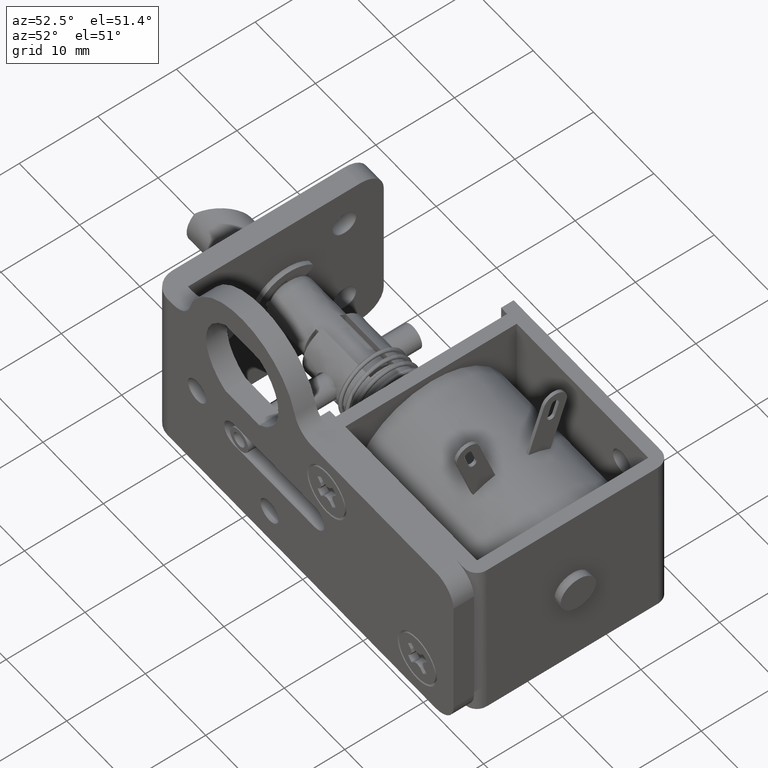
[diagram: clean part render]
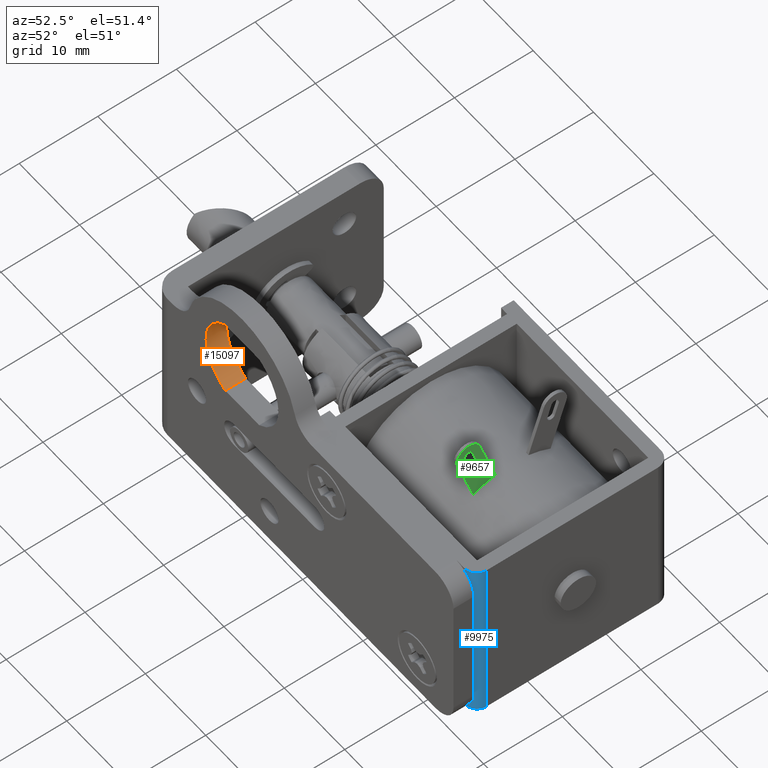
[diagram: same view with three faces highlighted in distinct colors, each labeled with its STEP entity id]
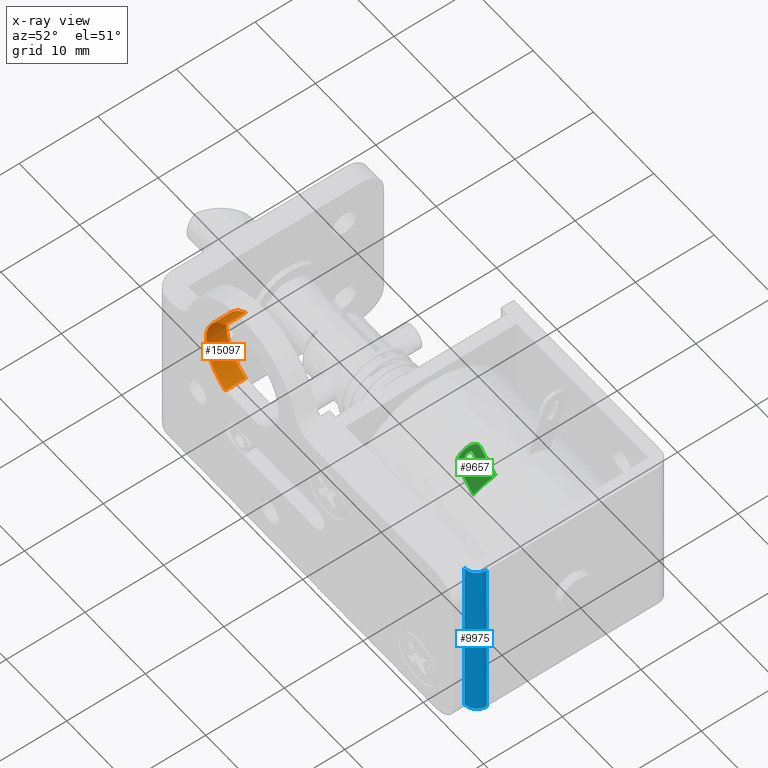
[diagram: x-ray of the same camera — body ghosted, the three highlighted faces saturated]
A machine part, auxiliary view with three faces highlighted in distinct colors.
The next image is the same camera in x-ray (body ghosted, the three faces saturated) — at least one of them is partly hidden behind the body in this view.
Their STEP definitions:

[orange] entity #15097 — the highlighted face is a freeform B-spline surface patch.
#14933=CARTESIAN_POINT('',(-2.812472222085045,0.0,5.300000000000000));
#14934=VERTEX_POINT('',#14933);
#14942=CARTESIAN_POINT('',(-2.812472222085045,2.599999999999880,5.300000000000000));
#14943=VERTEX_POINT('',#14942);
#14944=CARTESIAN_POINT('',(-2.812472222085045,2.599999999999880,5.300000000000000));
#14945=CARTESIAN_POINT('',(-2.812472222085045,0.0,5.300000000000000));
#14946=QUASI_UNIFORM_CURVE('',1,(#14944,#14945),.UNSPECIFIED.,.F.,.U.);
#14947=EDGE_CURVE('',#14943,#14934,#14946,.T.);
#15026=CARTESIAN_POINT('',(-2.812472222085045,0.0,-5.300000000000000));
#15027=VERTEX_POINT('',#15026);
#15034=CARTESIAN_POINT('',(-2.812472222085045,2.599999999999825,-5.300000000000000));
#15035=VERTEX_POINT('',#15034);
#15041=CARTESIAN_POINT('',(-2.812472222085045,2.599999999999825,-5.300000000000000));
#15042=CARTESIAN_POINT('',(-2.812472222085045,0.0,-5.300000000000000));
#15043=QUASI_UNIFORM_CURVE('',1,(#15041,#15042),.UNSPECIFIED.,.F.,.U.);
#15044=EDGE_CURVE('',#15035,#15027,#15043,.T.);
#15049=CARTESIAN_POINT('',(-2.587518796469885,2.664999999999877,-5.413385860800522));
#15050=CARTESIAN_POINT('',(-2.587518796469885,-0.066624999999997,-5.413385860800522));
#15051=CARTESIAN_POINT('',(-14.466109935517093,2.664999999999878,0.264405938677832));
#15052=CARTESIAN_POINT('',(-14.466109935517093,-0.066624999999997,0.264405938677832));
#15053=CARTESIAN_POINT('',(-2.387969101481931,2.664999999999877,5.504325896090052));
#15054=CARTESIAN_POINT('',(-2.387969101481931,-0.066624999999997,5.504325896090052));
#15062=(BOUNDED_SURFACE()B_SPLINE_SURFACE(1,2,((#15049,#15051,#15053),(#15050,#15052,#15054)),.UNSPECIFIED.,.F.,.F.,.U.)B_SPLINE_SURFACE_WITH_KNOTS((2,2),(3,3),(0.0,2.731624999999874),(0.0,15.437318736344441),.UNSPECIFIED.)GEOMETRIC_REPRESENTATION_ITEM()RATIONAL_B_SPLINE_SURFACE(((1.0,0.414693242656239,1.0),(1.0,0.414693242656239,1.0)))REPRESENTATION_ITEM('')SURFACE());
#15063=CARTESIAN_POINT('',(-2.812472222085045,0.0,5.300000000000001));
#15064=CARTESIAN_POINT('',(-5.999999999999999,0.0,3.608522012733910));
#15065=CARTESIAN_POINT('',(-6.0,0.0,0.0));
#15066=CARTESIAN_POINT('',(-5.999999999999999,0.0,-3.608522012733912));
#15067=CARTESIAN_POINT('',(-2.812472222085045,0.0,-5.300000000000001));
#15075=(BOUNDED_CURVE()B_SPLINE_CURVE(2,(#15063,#15064,#15065,#15066,#15067),.UNSPECIFIED.,.F.,.U.)B_SPLINE_CURVE_WITH_KNOTS((3,2,3),(0.0,0.500000000000000,1.0),.UNSPECIFIED.)CURVE()GEOMETRIC_REPRESENTATION_ITEM()RATIONAL_B_SPLINE_CURVE((1.0,0.856955474440623,1.0,0.856955474440623,1.0))REPRESENTATION_ITEM(''));
#15076=EDGE_CURVE('',#14934,#15027,#15075,.T.);
#15077=ORIENTED_EDGE('',*,*,#15076,.T.);
#15078=ORIENTED_EDGE('',*,*,#15044,.F.);
#15079=CARTESIAN_POINT('',(-2.812472222085045,2.599999999999880,5.300000000000000));
#15080=CARTESIAN_POINT('',(-5.999999999999999,2.599999999999825,3.608522012733910));
#15081=CARTESIAN_POINT('',(-6.0,2.599999999999825,0.0));
#15082=CARTESIAN_POINT('',(-5.999999999999999,2.599999999999825,-3.608522012733912));
#15083=CARTESIAN_POINT('',(-2.812472222085045,2.599999999999825,-5.300000000000001));
#15091=(BOUNDED_CURVE()B_SPLINE_CURVE(2,(#15079,#15080,#15081,#15082,#15083),.UNSPECIFIED.,.F.,.U.)B_SPLINE_CURVE_WITH_KNOTS((3,2,3),(0.0,0.500000000000000,1.0),.UNSPECIFIED.)CURVE()GEOMETRIC_REPRESENTATION_ITEM()RATIONAL_B_SPLINE_CURVE((1.0,0.856955474440623,1.0,0.856955474440623,1.0))REPRESENTATION_ITEM(''));
#15092=EDGE_CURVE('',#14943,#15035,#15091,.T.);
#15093=ORIENTED_EDGE('',*,*,#15092,.F.);
#15094=ORIENTED_EDGE('',*,*,#14947,.T.);
#15095=EDGE_LOOP('',(#15077,#15078,#15093,#15094));
#15096=FACE_OUTER_BOUND('',#15095,.T.);
#15097=ADVANCED_FACE('',(#15096),#15062,.F.);

[blue] entity #9975 — the highlighted face is a freeform B-spline surface patch.
#9915=CARTESIAN_POINT('',(34.999451719960888,4.241883117292478,-22.550000000000001));
#9916=CARTESIAN_POINT('',(34.999451719960888,4.241883117292478,0.563749999999999));
#9917=CARTESIAN_POINT('',(35.045587572725708,2.480025981849747,-22.550000000000015));
#9918=CARTESIAN_POINT('',(35.045587572725708,2.480025981849747,0.563749999999999));
#9919=CARTESIAN_POINT('',(33.287489378229708,2.603960727303610,-22.550000000000011));
#9920=CARTESIAN_POINT('',(33.287489378229708,2.603960727303610,0.563749999999999));
#9928=(BOUNDED_SURFACE()B_SPLINE_SURFACE(1,2,((#9915,#9917,#9919),(#9916,#9918,#9920)),.UNSPECIFIED.,.F.,.F.,.U.)B_SPLINE_SURFACE_WITH_KNOTS((2,2),(3,3),(0.0,23.113750000000010),(0.0,2.833825952290789),.UNSPECIFIED.)GEOMETRIC_REPRESENTATION_ITEM()RATIONAL_B_SPLINE_SURFACE(((1.0,0.670944431512030,0.996392236463176),(1.0,0.670944431512030,0.996392236463176)))REPRESENTATION_ITEM('')SURFACE());
#9929=CARTESIAN_POINT('',(35.0,4.199999999999880,-22.0));
#9930=VERTEX_POINT('',#9929);
#9931=CARTESIAN_POINT('',(33.399999999999999,2.599999999999880,-22.0));
#9932=VERTEX_POINT('',#9931);
#9933=CARTESIAN_POINT('',(34.999999999999993,4.199999999999880,-22.0));
#9934=CARTESIAN_POINT('',(34.999999999999993,2.599999999999880,-22.000000000000007));
#9935=CARTESIAN_POINT('',(33.399999999999999,2.599999999999880,-22.0));
#9943=(BOUNDED_CURVE()B_SPLINE_CURVE(2,(#9933,#9934,#9935),.UNSPECIFIED.,.F.,.U.)CURVE()GEOMETRIC_REPRESENTATION_ITEM()QUASI_UNIFORM_CURVE()RATIONAL_B_SPLINE_CURVE((1.0,0.707106781186548,1.0))REPRESENTATION_ITEM(''));
#9944=EDGE_CURVE('',#9930,#9932,#9943,.T.);
#9945=ORIENTED_EDGE('',*,*,#9944,.F.);
#9946=CARTESIAN_POINT('',(35.0,4.199999999999880,0.0));
#9947=VERTEX_POINT('',#9946);
#9948=CARTESIAN_POINT('',(35.0,4.199999999999880,0.0));
#9949=CARTESIAN_POINT('',(35.0,4.199999999999880,-22.0));
#9950=QUASI_UNIFORM_CURVE('',1,(#9948,#9949),.UNSPECIFIED.,.F.,.U.);
#9951=EDGE_CURVE('',#9947,#9930,#9950,.T.);
#9952=ORIENTED_EDGE('',*,*,#9951,.F.);
#9953=CARTESIAN_POINT('',(33.399999999999999,2.599999999999880,0.0));
#9954=VERTEX_POINT('',#9953);
#9955=CARTESIAN_POINT('',(33.399999999999999,2.599999999999880,0.0));
#9956=CARTESIAN_POINT('',(34.999999999999993,2.599999999999880,0.0));
#9957=CARTESIAN_POINT('',(34.999999999999993,4.199999999999880,0.0));
#9965=(BOUNDED_CURVE()B_SPLINE_CURVE(2,(#9955,#9956,#9957),.UNSPECIFIED.,.F.,.U.)CURVE()GEOMETRIC_REPRESENTATION_ITEM()QUASI_UNIFORM_CURVE()RATIONAL_B_SPLINE_CURVE((1.0,0.707106781186548,1.0))REPRESENTATION_ITEM(''));
#9966=EDGE_CURVE('',#9954,#9947,#9965,.T.);
#9967=ORIENTED_EDGE('',*,*,#9966,.F.);
#9968=CARTESIAN_POINT('',(33.399999999999999,2.599999999999880,-22.0));
#9969=CARTESIAN_POINT('',(33.399999999999999,2.599999999999880,0.0));
#9970=QUASI_UNIFORM_CURVE('',1,(#9968,#9969),.UNSPECIFIED.,.F.,.U.);
#9971=EDGE_CURVE('',#9932,#9954,#9970,.T.);
#9972=ORIENTED_EDGE('',*,*,#9971,.F.);
#9973=EDGE_LOOP('',(#9945,#9952,#9967,#9972));
#9974=FACE_OUTER_BOUND('',#9973,.T.);
#9975=ADVANCED_FACE('',(#9974),#9928,.T.);

[green] entity #9657 — the highlighted face is a freeform B-spline surface patch.
#8650=CARTESIAN_POINT('',(25.0,10.180044786630980,-2.294022702852710));
#8651=VERTEX_POINT('',#8650);
#8672=CARTESIAN_POINT('',(25.0,12.988461152209119,-1.225471689423060));
#8673=VERTEX_POINT('',#8672);
#8679=CARTESIAN_POINT('',(25.0,12.988461152209130,-1.225471689423064));
#8680=CARTESIAN_POINT('',(25.000000000000004,11.503061030809997,-1.546354698933979));
#8681=CARTESIAN_POINT('',(25.0,10.180044786631010,-2.294022702852755));
#8689=(BOUNDED_CURVE()B_SPLINE_CURVE(2,(#8679,#8680,#8681),.UNSPECIFIED.,.F.,.U.)CURVE()GEOMETRIC_REPRESENTATION_ITEM()QUASI_UNIFORM_CURVE()RATIONAL_B_SPLINE_CURVE((1.0,0.988649326416161,1.0))REPRESENTATION_ITEM(''));
#8690=EDGE_CURVE('',#8673,#8651,#8689,.T.);
#9566=CARTESIAN_POINT('',(25.0,7.855857809778371,-2.708308279061652));
#9567=CARTESIAN_POINT('',(25.0,13.232638541345841,-2.708308279061652));
#9568=CARTESIAN_POINT('',(25.0,7.855857809778371,6.414265681604528));
#9569=CARTESIAN_POINT('',(25.0,13.232638541345841,6.414265681604528));
#9570=B_SPLINE_SURFACE_WITH_KNOTS('',1,1,((#9566,#9568),(#9567,#9569)),.UNSPECIFIED.,.F.,.F.,.U.,(2,2),(2,2),(0.0,5.376780731567472),(0.0,9.122573960666180),.UNSPECIFIED.);
#9571=CARTESIAN_POINT('',(25.0,11.028351368709300,4.958052799910870));
#9572=VERTEX_POINT('',#9571);
#9573=CARTESIAN_POINT('',(25.0,12.988461152209119,-1.225471689423060));
#9574=CARTESIAN_POINT('',(25.0,11.028351368709300,4.958052799910870));
#9575=QUASI_UNIFORM_CURVE('',1,(#9573,#9574),.UNSPECIFIED.,.F.,.U.);
#9576=EDGE_CURVE('',#8673,#9572,#9575,.T.);
#9577=ORIENTED_EDGE('',*,*,#9576,.T.);
#9578=CARTESIAN_POINT('',(25.0,8.170118618095501,4.046745950174785));
#9579=VERTEX_POINT('',#9578);
#9580=CARTESIAN_POINT('',(25.0,11.028351368709330,4.958052799910878));
#9581=CARTESIAN_POINT('',(25.0,10.571066958185334,6.384008091066101));
#9582=CARTESIAN_POINT('',(25.0,9.144345932939174,5.929118389487354));
#9583=CARTESIAN_POINT('',(25.0,7.717624907693015,5.474228687908608));
#9584=CARTESIAN_POINT('',(25.0,8.170118618095525,4.046745950174793));
#9592=(BOUNDED_CURVE()B_SPLINE_CURVE(2,(#9580,#9581,#9582,#9583,#9584),.UNSPECIFIED.,.F.,.U.)B_SPLINE_CURVE_WITH_KNOTS((3,2,3),(0.0,0.500000000000000,1.0),.UNSPECIFIED.)CURVE()GEOMETRIC_REPRESENTATION_ITEM()RATIONAL_B_SPLINE_CURVE((1.0,0.707700120007606,1.0,0.707700120007606,1.0))REPRESENTATION_ITEM(''));
#9593=EDGE_CURVE('',#9572,#9579,#9592,.T.);
#9594=ORIENTED_EDGE('',*,*,#9593,.T.);
#9595=CARTESIAN_POINT('',(25.0,8.170118618095501,4.046745950174785));
#9596=CARTESIAN_POINT('',(25.0,10.180044786630980,-2.294022702852710));
#9597=QUASI_UNIFORM_CURVE('',1,(#9595,#9596),.UNSPECIFIED.,.F.,.U.);
#9598=EDGE_CURVE('',#9579,#8651,#9597,.T.);
#9599=ORIENTED_EDGE('',*,*,#9598,.T.);
#9600=ORIENTED_EDGE('',*,*,#8690,.F.);
#9601=EDGE_LOOP('',(#9577,#9594,#9599,#9600));
#9602=FACE_OUTER_BOUND('',#9601,.T.);
#9603=CARTESIAN_POINT('',(25.0,10.590090298348660,3.031279634642370));
#9604=VERTEX_POINT('',#9603);
#9605=CARTESIAN_POINT('',(25.0,10.076631999999901,4.651075000000111));
#9606=VERTEX_POINT('',#9605);
#9607=CARTESIAN_POINT('',(25.0,10.590090298348660,3.031279634642370));
#9608=CARTESIAN_POINT('',(25.0,10.076631999999901,4.651075000000111));
#9609=QUASI_UNIFORM_CURVE('',1,(#9607,#9608),.UNSPECIFIED.,.F.,.U.);
#9610=EDGE_CURVE('',#9604,#9606,#9609,.T.);
#9611=ORIENTED_EDGE('',*,*,#9610,.F.);
#9612=CARTESIAN_POINT('',(25.0,9.637086000000000,2.728323000000105));
#9613=VERTEX_POINT('',#9612);
#9614=CARTESIAN_POINT('',(25.0,9.637085999999952,2.728323000000091));
#9615=CARTESIAN_POINT('',(25.0,9.724370163519485,2.452966944908148));
#9616=CARTESIAN_POINT('',(25.0,10.006511754286350,2.391034683229414));
#9617=CARTESIAN_POINT('',(25.0,10.288653345053216,2.329102421550680));
#9618=CARTESIAN_POINT('',(25.0,10.483241443517370,2.542585334715189));
#9619=CARTESIAN_POINT('',(25.0,10.677829541981529,2.756068247879697));
#9620=CARTESIAN_POINT('',(25.0,10.590090298348651,3.031279634642367));
#9628=(BOUNDED_CURVE()B_SPLINE_CURVE(2,(#9614,#9615,#9616,#9617,#9618,#9619,#9620),.UNSPECIFIED.,.F.,.U.)B_SPLINE_CURVE_WITH_KNOTS((3,2,2,3),(0.0,0.333333333333333,0.666666666666667,1.0),.UNSPECIFIED.)CURVE()GEOMETRIC_REPRESENTATION_ITEM()RATIONAL_B_SPLINE_CURVE((1.0,0.865887610011602,1.0,0.865887610011602,1.0,0.865887610011602,1.0))REPRESENTATION_ITEM(''));
#9629=EDGE_CURVE('',#9613,#9604,#9628,.T.);
#9630=ORIENTED_EDGE('',*,*,#9629,.F.);
#9631=CARTESIAN_POINT('',(25.0,9.124169500190170,4.346424821501801));
#9632=VERTEX_POINT('',#9631);
#9633=CARTESIAN_POINT('',(25.0,9.124169500190170,4.346424821501801));
#9634=CARTESIAN_POINT('',(25.0,9.637086000000000,2.728323000000105));
#9635=QUASI_UNIFORM_CURVE('',1,(#9633,#9634),.UNSPECIFIED.,.F.,.U.);
#9636=EDGE_CURVE('',#9632,#9613,#9635,.T.);
#9637=ORIENTED_EDGE('',*,*,#9636,.F.);
#9638=CARTESIAN_POINT('',(25.0,10.076631999999901,4.651075000000112));
#9639=CARTESIAN_POINT('',(24.999999999999996,9.989227660700690,4.926807506737890));
#9640=CARTESIAN_POINT('',(25.0,9.706626718156084,4.988489279354536));
#9641=CARTESIAN_POINT('',(24.999999999999996,9.424025775611478,5.050171051971181));
#9642=CARTESIAN_POINT('',(25.0,9.229678640694727,4.835934909012338));
#9643=CARTESIAN_POINT('',(24.999999999999996,9.035331505777975,4.621698766053497));
#9644=CARTESIAN_POINT('',(25.0,9.124169500190163,4.346424821501799));
#9652=(BOUNDED_CURVE()B_SPLINE_CURVE(2,(#9638,#9639,#9640,#9641,#9642,#9643,#9644),.UNSPECIFIED.,.F.,.U.)B_SPLINE_CURVE_WITH_KNOTS((3,2,2,3),(0.0,0.333333333333333,0.666666666666667,1.0),.UNSPECIFIED.)CURVE()GEOMETRIC_REPRESENTATION_ITEM()RATIONAL_B_SPLINE_CURVE((1.0,0.865591431699600,1.0,0.865591431699600,1.0,0.865591431699600,1.0))REPRESENTATION_ITEM(''));
#9653=EDGE_CURVE('',#9606,#9632,#9652,.T.);
#9654=ORIENTED_EDGE('',*,*,#9653,.F.);
#9655=EDGE_LOOP('',(#9611,#9630,#9637,#9654));
#9656=FACE_BOUND('',#9655,.T.);
#9657=ADVANCED_FACE('',(#9602,#9656),#9570,.T.);